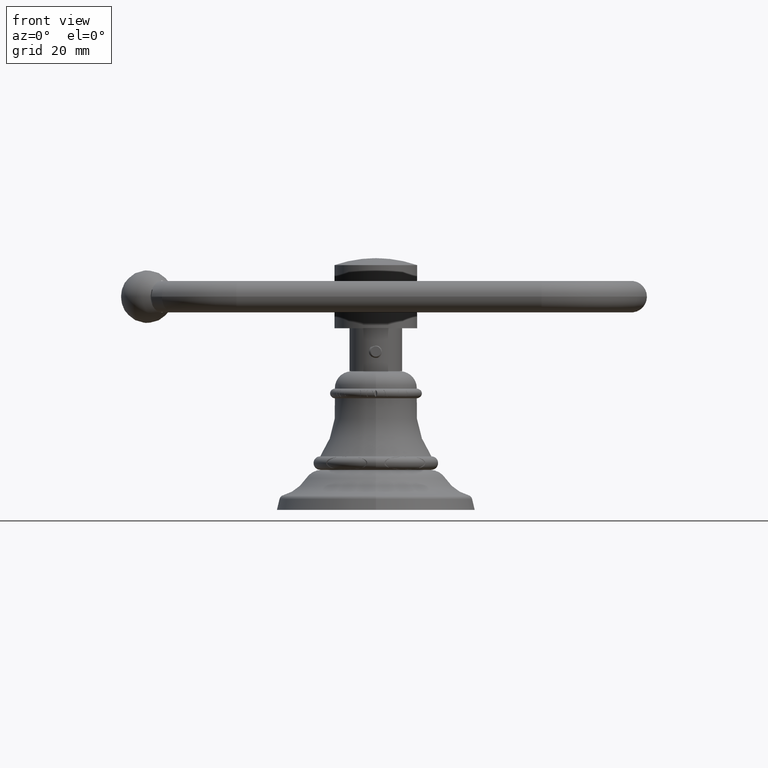
[diagram: clean part render]
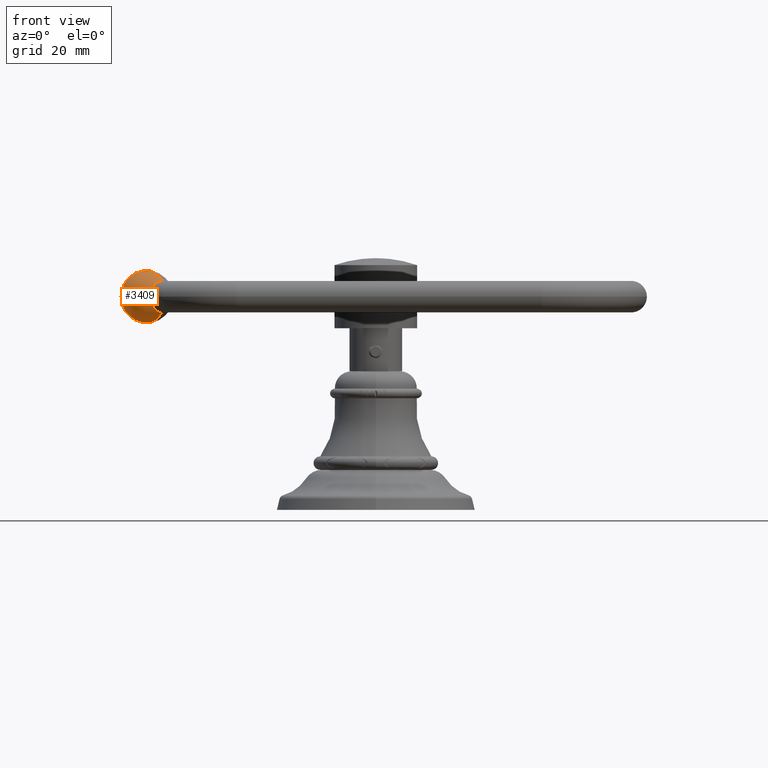
[diagram: same view with one face highlighted and labeled with its STEP entity id]
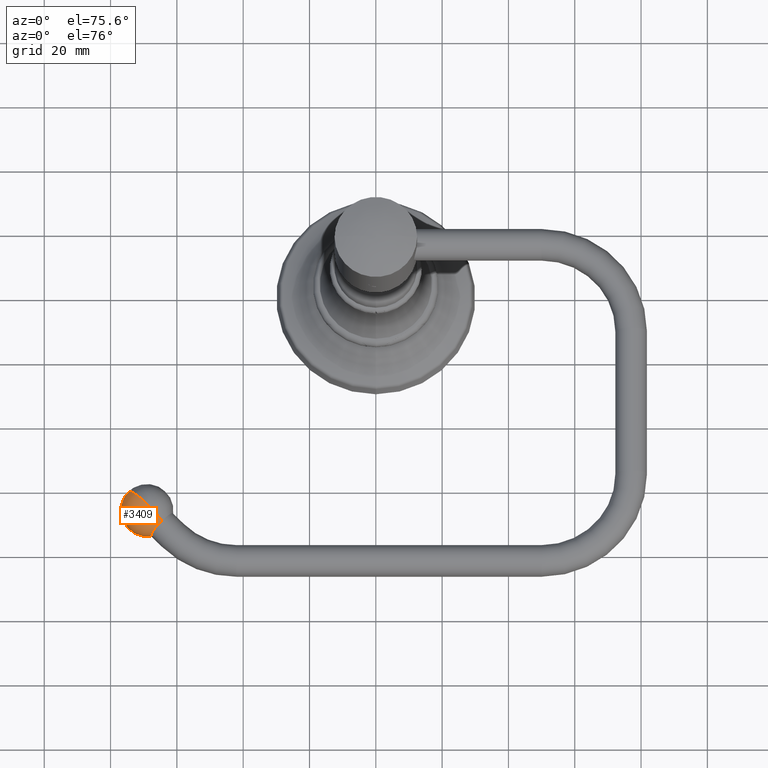
[diagram: same view with one face highlighted and labeled with its STEP entity id]
A machine part, front view. The second image highlights one B-rep face of the part: STEP entity #3409.
A second angle (auxiliary view) of the same face is appended — the face is thin or edge-on in the first view.
In plain terms, the highlighted spherical surface has radius 7.9375 mm.
Its self-contained STEP definition (entity closure, byte-faithful):
#3363=CARTESIAN_POINT('',(-2.715774071932E0,-3.255327838090E0,2.531E0));
#3364=DIRECTION('',(7.071067811865E-1,7.071067811865E-1,0.E0));
#3365=DIRECTION('',(5.639812762849E-1,-5.639812762849E-1,-6.032E-1));
#3366=AXIS2_PLACEMENT_3D('',#3363,#3364,#3365);
#3368=CARTESIAN_POINT('',(-2.715774071932E0,-3.255327838090E0,2.531E0));
#3369=DIRECTION('',(-7.071067811865E-1,-7.071067811865E-1,0.E0));
#3370=DIRECTION('',(5.639812762849E-1,-5.639812762849E-1,6.032E-1));
#3371=AXIS2_PLACEMENT_3D('',#3368,#3369,#3370);
#3373=CARTESIAN_POINT('',(-2.539529923093E0,-3.431571986929E0,2.531E0));
#3374=DIRECTION('',(7.071067811865E-1,-7.071067811865E-1,0.E0));
#3375=DIRECTION('',(0.E0,0.E0,1.E0));
#3376=AXIS2_PLACEMENT_3D('',#3373,#3374,#3375);
#3378=CARTESIAN_POINT('',(-2.539529923093E0,-3.431571986929E0,2.3425E0));
#3379=CARTESIAN_POINT('',(-2.936744941052E0,-3.034356968969E0,2.531E0));
#3380=VERTEX_POINT('',#3378);
#3381=VERTEX_POINT('',#3379);
#3382=CARTESIAN_POINT('',(-2.539529923093E0,-3.431571986929E0,2.7195E0));
#3383=VERTEX_POINT('',#3382);
#3398=CARTESIAN_POINT('',(-2.715774071932E0,-3.255327838090E0,2.531E0));
#3399=DIRECTION('',(7.071067811865E-1,-7.071067811865E-1,0.E0));
#3400=DIRECTION('',(0.E0,0.E0,1.E0));
#3401=AXIS2_PLACEMENT_3D('',#3398,#3399,#3400);
#3402=SPHERICAL_SURFACE('',#3401,3.125E-1);
#3403=ORIENTED_EDGE('',*,*,#3389,.T.);
#3404=ORIENTED_EDGE('',*,*,#3393,.F.);
#3406=ORIENTED_EDGE('',*,*,#3405,.T.);
#3407=EDGE_LOOP('',(#3403,#3404,#3406));
#3408=FACE_OUTER_BOUND('',#3407,.F.);
#3409=ADVANCED_FACE('',(#3408),#3402,.T.);
#3367=CIRCLE('',#3366,3.125E-1);
#3372=CIRCLE('',#3371,3.125E-1);
#3377=CIRCLE('',#3376,1.885E-1);
#3389=EDGE_CURVE('',#3380,#3381,#3367,.T.);
#3393=EDGE_CURVE('',#3383,#3381,#3372,.T.);
#3405=EDGE_CURVE('',#3383,#3380,#3377,.T.);